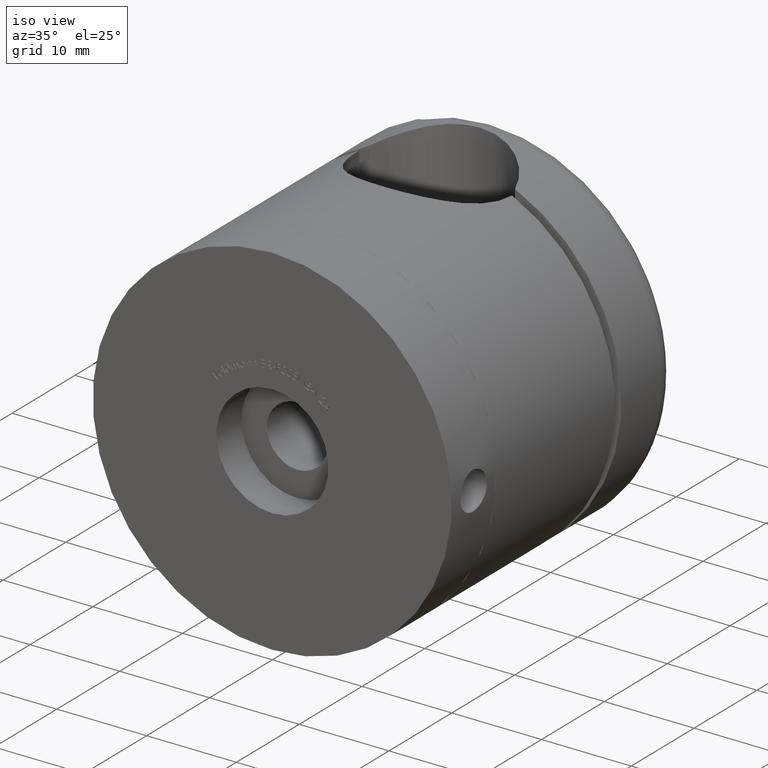
[diagram: clean part render]
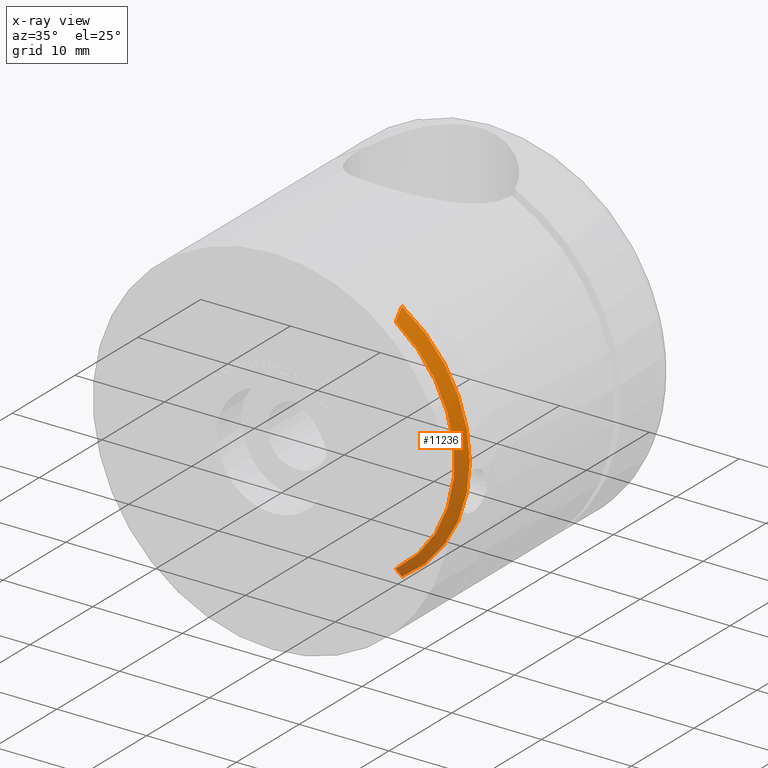
[diagram: x-ray — body ghosted, one internal face saturated and labeled with its STEP entity id]
A machine part, iso view, then the same camera in x-ray: the body is ghosted and one INTERNAL B-rep face — a face not visible from any outside direction — is saturated and labeled: STEP entity #11236.
In plain terms, the highlighted conical surface has half-angle 45 deg.
Its self-contained STEP definition (entity closure, byte-faithful):
#203 = CARTESIAN_POINT ( 'NONE',  ( 8.499999999999998200, 29.16962134847506100, -12.82018611508261900 ) ) ;
#713 = CARTESIAN_POINT ( 'NONE',  ( 8.499999999999998200, 28.83595923316134000, 13.21836121303637900 ) ) ;
#1628 = AXIS2_PLACEMENT_3D ( 'NONE', #9131, #15952, #5270 ) ;
#1958 = EDGE_CURVE ( 'NONE', #13340, #6534, #11162, .T. ) ;
#2612 = CIRCLE ( 'NONE', #1628, 15.04999999999999400 ) ;
#2760 = ORIENTED_EDGE ( 'NONE', *, *, #1958, .F. ) ;
#4242 = CARTESIAN_POINT ( 'NONE',  ( 0.0000000000000000000, 28.49999999999998900, 0.0000000000000000000 ) ) ;
#4490 = CARTESIAN_POINT ( 'NONE',  ( 8.499999999999998200, 28.49999999999998600, 13.61442249968760800 ) ) ;
#4509 = CARTESIAN_POINT ( 'NONE',  ( 8.499999999999998200, 29.50000000000000000, 12.41984299417669000 ) ) ;
#4797 = CARTESIAN_POINT ( 'NONE',  ( 8.499999999999998200, 29.50000000000000000, 12.41984299417669000 ) ) ;
#5270 = DIRECTION ( 'NONE',  ( 0.0000000000000000000, 0.0000000000000000000, 1.000000000000000000 ) ) ;
#5490 = CARTESIAN_POINT ( 'NONE',  ( 8.499999999999998200, 28.49999999999997900, -13.61442249968762000 ) ) ;
#6534 = VERTEX_POINT ( 'NONE', #16890 ) ;
#6628 = VERTEX_POINT ( 'NONE', #4490 ) ;
#6870 = ORIENTED_EDGE ( 'NONE', *, *, #14258, .F. ) ;
#7294 = AXIS2_PLACEMENT_3D ( 'NONE', #4242, #16336, #11017 ) ;
#7473 = CONICAL_SURFACE ( 'NONE', #7818, 15.04999999999999400, 0.7853981633974482800 ) ;
#7568 = DIRECTION ( 'NONE',  ( 0.0000000000000000000, -1.000000000000000000, 0.0000000000000000000 ) ) ;
#7818 = AXIS2_PLACEMENT_3D ( 'NONE', #10353, #7568, #12989 ) ;
#8547 = EDGE_CURVE ( 'NONE', #6628, #9525, #14159, .T. ) ;
#9004 = CARTESIAN_POINT ( 'NONE',  ( 8.499999999999998200, 29.50000000000000000, -12.41984299417669200 ) ) ;
#9131 = CARTESIAN_POINT ( 'NONE',  ( 0.0000000000000000000, 29.50000000000000000, 0.0000000000000000000 ) ) ;
#9525 = VERTEX_POINT ( 'NONE', #4509 ) ;
#10353 = CARTESIAN_POINT ( 'NONE',  ( 0.0000000000000000000, 29.50000000000000000, 0.0000000000000000000 ) ) ;
#10368 = ORIENTED_EDGE ( 'NONE', *, *, #8547, .F. ) ;
#10978 = CARTESIAN_POINT ( 'NONE',  ( 8.499999999999998200, 28.83607523664976900, -13.21822445688761700 ) ) ;
#11017 = DIRECTION ( 'NONE',  ( 0.0000000000000000000, 0.0000000000000000000, 1.000000000000000000 ) ) ;
#11089 = FACE_OUTER_BOUND ( 'NONE', #16688, .T. ) ;
#11162 = B_SPLINE_CURVE_WITH_KNOTS ( 'NONE', 3,
 ( #13540, #203, #10978, #5490 ),
 .UNSPECIFIED., .F., .F.,
 ( 4, 4 ),
 ( 0.05413323917447383800, 0.05569312268412510100 ),
 .UNSPECIFIED. ) ;
#11236 = ADVANCED_FACE ( 'NONE', ( #11089 ), #7473, .T. ) ;
#11507 = CARTESIAN_POINT ( 'NONE',  ( 8.499999999999998200, 29.16949837352622400, 12.82033513250424900 ) ) ;
#12989 = DIRECTION ( 'NONE',  ( 0.0000000000000000000, 0.0000000000000000000, -1.000000000000000000 ) ) ;
#13340 = VERTEX_POINT ( 'NONE', #9004 ) ;
#13540 = CARTESIAN_POINT ( 'NONE',  ( 8.499999999999998200, 29.50000000000000000, -12.41984299417669200 ) ) ;
#14069 = ORIENTED_EDGE ( 'NONE', *, *, #15623, .F. ) ;
#14159 = B_SPLINE_CURVE_WITH_KNOTS ( 'NONE', 3,
 ( #16830, #713, #11507, #4797 ),
 .UNSPECIFIED., .F., .F.,
 ( 4, 4 ),
 ( 0.02400942396631759700, 0.02556712859675523000 ),
 .UNSPECIFIED. ) ;
#14258 = EDGE_CURVE ( 'NONE', #9525, #13340, #2612, .T. ) ;
#15623 = EDGE_CURVE ( 'NONE', #6534, #6628, #16002, .T. ) ;
#15952 = DIRECTION ( 'NONE',  ( 0.0000000000000000000, 1.000000000000000000, 0.0000000000000000000 ) ) ;
#16002 = CIRCLE ( 'NONE', #7294, 16.05000000000000100 ) ;
#16336 = DIRECTION ( 'NONE',  ( 0.0000000000000000000, -1.000000000000000000, 0.0000000000000000000 ) ) ;
#16688 = EDGE_LOOP ( 'NONE', ( #10368, #14069, #2760, #6870 ) ) ;
#16830 = CARTESIAN_POINT ( 'NONE',  ( 8.499999999999998200, 28.49999999999998600, 13.61442249968760800 ) ) ;
#16890 = CARTESIAN_POINT ( 'NONE',  ( 8.499999999999998200, 28.49999999999997900, -13.61442249968762000 ) ) ;